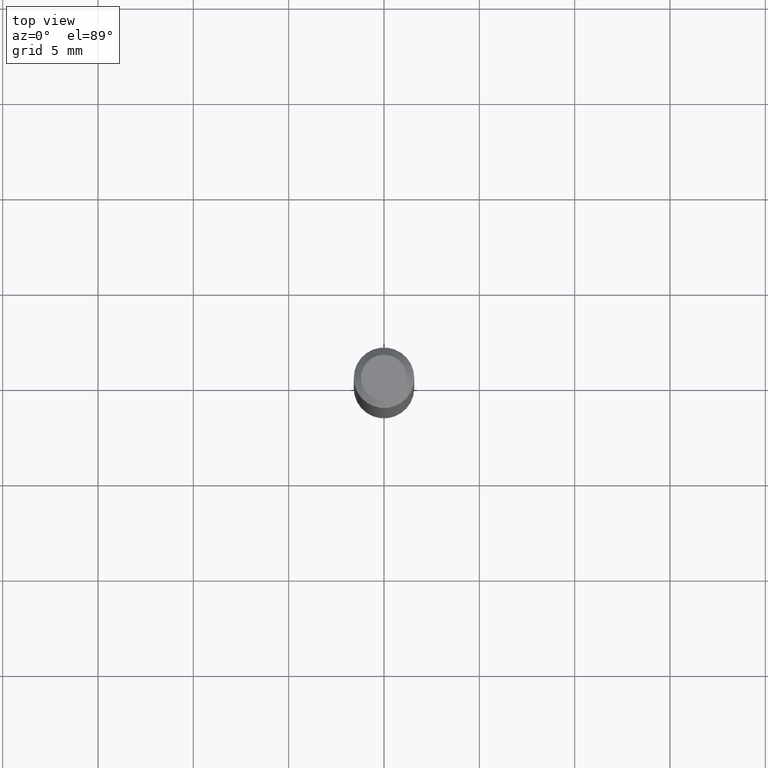
[diagram: clean part render]
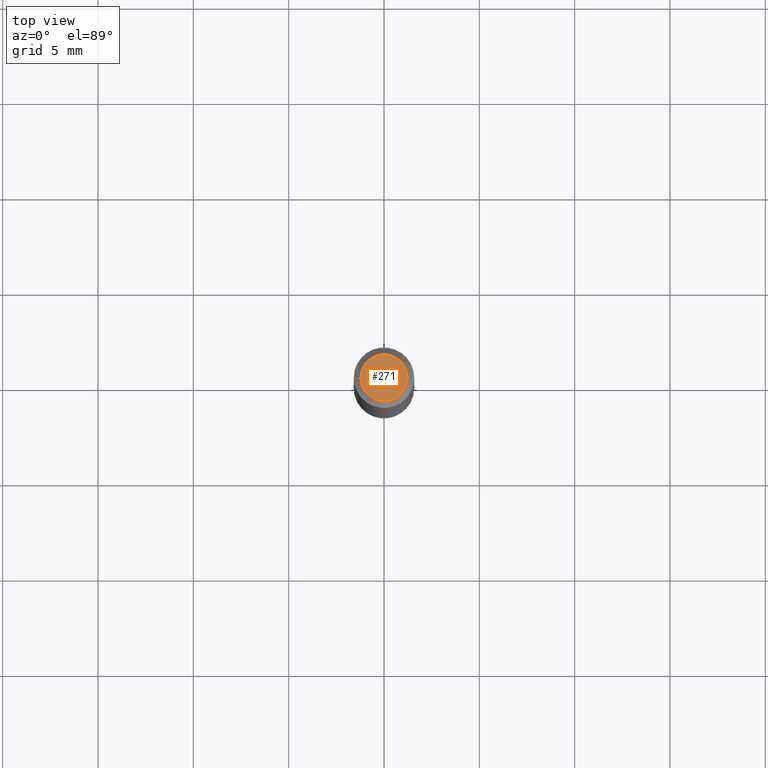
[diagram: same view with one face highlighted and labeled with its STEP entity id]
A machine part, top view. The second image highlights one B-rep face of the part: STEP entity #271.
In plain terms, the highlighted planar face has unit normal (0, -0, -1).
Its self-contained STEP definition (entity closure, byte-faithful):
#31 = DIRECTION ( 'NONE',  ( -1.000000000000000000, 6.982962677686265922E-15, -4.876176775795935793E-29 ) ) ;
#43 = EDGE_CURVE ( 'NONE', #81, #421, #317, .T. ) ;
#47 = AXIS2_PLACEMENT_3D ( 'NONE', #223, #295, #390 ) ;
#57 = AXIS2_PLACEMENT_3D ( 'NONE', #126, #285, #88 ) ;
#60 = ORIENTED_EDGE ( 'NONE', *, *, #158, .T. ) ;
#81 = VERTEX_POINT ( 'NONE', #247 ) ;
#88 = DIRECTION ( 'NONE',  ( 1.000000000000000000, -6.982962677686267499E-15, 5.108144071313017768E-29 ) ) ;
#97 = EDGE_LOOP ( 'NONE', ( #362, #60 ) ) ;
#126 = CARTESIAN_POINT ( 'NONE',  ( -3.538878827018360888E-44, 5.052581064911080951E-30, 1.447116732001547520E-15 ) ) ;
#158 = EDGE_CURVE ( 'NONE', #421, #81, #417, .T. ) ;
#223 = CARTESIAN_POINT ( 'NONE',  ( -3.538878827018360888E-44, 5.052581064911080951E-30, 1.447116732001547520E-15 ) ) ;
#245 = FACE_OUTER_BOUND ( 'NONE', #97, .T. ) ;
#247 = CARTESIAN_POINT ( 'NONE',  ( -0.04749999999999999362, 3.578768372314235651E-16, 1.447116732001545153E-15 ) ) ;
#271 = ADVANCED_FACE ( 'NONE', ( #245 ), #346, .F. ) ;
#273 = AXIS2_PLACEMENT_3D ( 'NONE', #341, #454, #31 ) ;
#285 = DIRECTION ( 'NONE',  ( -2.445468806185136597E-29, 3.491481338843145583E-15, 1.000000000000000000 ) ) ;
#295 = DIRECTION ( 'NONE',  ( -2.445468806185136597E-29, 3.491481338843145583E-15, 1.000000000000000000 ) ) ;
#317 = CIRCLE ( 'NONE', #57, 0.04749999999999999362 ) ;
#341 = CARTESIAN_POINT ( 'NONE',  ( 3.316907271900976096E-16, 0.04749999999999999362, 5.577130024057243141E-16 ) ) ;
#346 = PLANE ( 'NONE',  #273 ) ;
#362 = ORIENTED_EDGE ( 'NONE', *, *, #43, .T. ) ;
#390 = DIRECTION ( 'NONE',  ( 1.000000000000000000, -6.982962677686267499E-15, 5.108144071313017768E-29 ) ) ;
#417 = CIRCLE ( 'NONE', #47, 0.04749999999999999362 ) ;
#421 = VERTEX_POINT ( 'NONE', #453 ) ;
#453 = CARTESIAN_POINT ( 'NONE',  ( 0.04749999999999999362, -4.035134999187553478E-16, 1.447116732001550281E-15 ) ) ;
#454 = DIRECTION ( 'NONE',  ( 2.438088387897960049E-29, -3.491481338843145188E-15, -1.000000000000000000 ) ) ;